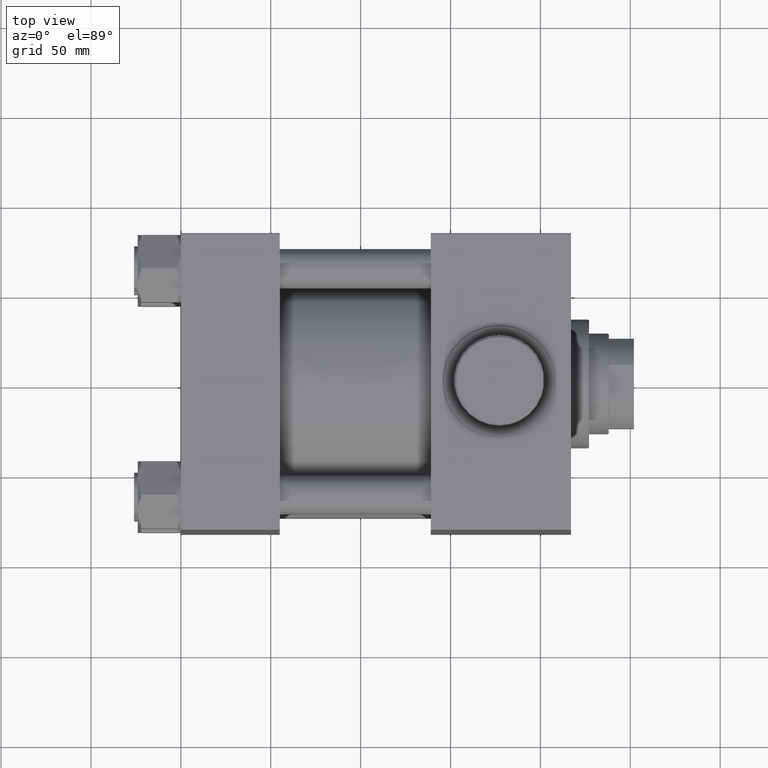
[diagram: clean part render]
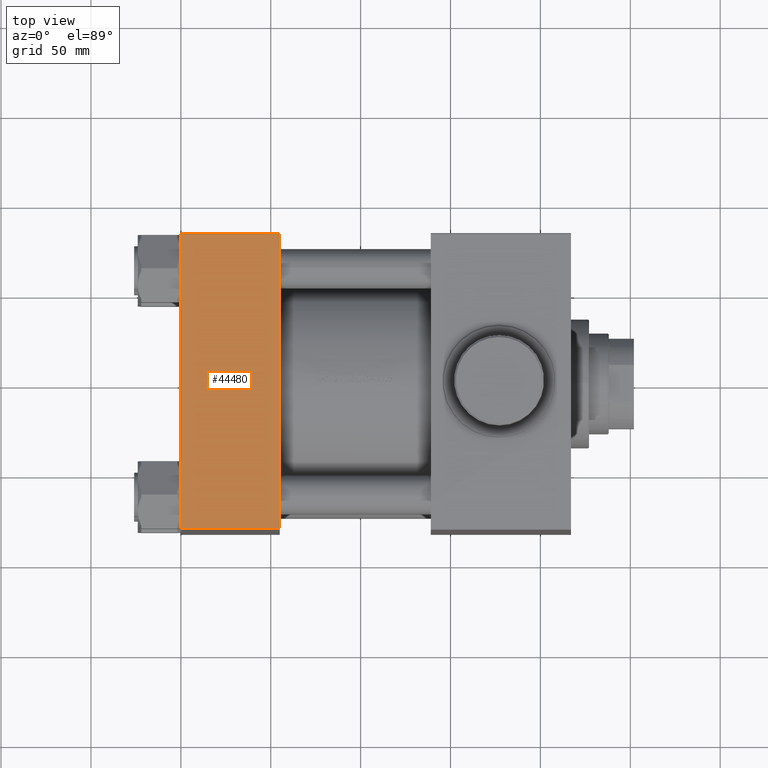
[diagram: same view with one face highlighted and labeled with its STEP entity id]
A machine part, top view. The second image highlights one B-rep face of the part: STEP entity #44480.
In plain terms, the highlighted planar face has unit normal (0, -0, -1).
Its self-contained STEP definition (entity closure, byte-faithful):
#918 = CARTESIAN_POINT ( 'NONE',  ( 55.00000000000000000, -82.50000000000000000, -81.99999999999998579 ) ) ;
#2134 = CARTESIAN_POINT ( 'NONE',  ( 55.00000000000000000, -82.49999999999997158, 82.50000000000001421 ) ) ;
#2611 = CARTESIAN_POINT ( 'NONE',  ( 0.000000000000000000, -82.49999999999997158, 82.00000000000001421 ) ) ;
#3690 = DIRECTION ( 'NONE',  ( 0.000000000000000000, -1.682156097916903588E-16, -1.000000000000000000 ) ) ;
#4586 = VECTOR ( 'NONE', #23312, 1000.000000000000000 ) ;
#5003 = FACE_OUTER_BOUND ( 'NONE', #28621, .T. ) ;
#7801 = VERTEX_POINT ( 'NONE', #918 ) ;
#8109 = VECTOR ( 'NONE', #20235, 1000.000000000000000 ) ;
#8305 = DIRECTION ( 'NONE',  ( 0.000000000000000000, 1.000000000000000000, -1.682156097916903588E-16 ) ) ;
#9862 = AXIS2_PLACEMENT_3D ( 'NONE', #2134, #8305, #12576 ) ;
#12576 = DIRECTION ( 'NONE',  ( 0.000000000000000000, 1.682156097916903588E-16, 1.000000000000000000 ) ) ;
#13992 = VERTEX_POINT ( 'NONE', #38621 ) ;
#14584 = EDGE_CURVE ( 'NONE', #13992, #32769, #38271, .T. ) ;
#16092 = ORIENTED_EDGE ( 'NONE', *, *, #42131, .T. ) ;
#20235 = DIRECTION ( 'NONE',  ( -1.000000000000000000, 0.000000000000000000, 0.000000000000000000 ) ) ;
#22281 = VECTOR ( 'NONE', #3690, 1000.000000000000000 ) ;
#23236 = PLANE ( 'NONE',  #9862 ) ;
#23312 = DIRECTION ( 'NONE',  ( 1.000000000000000000, 0.000000000000000000, 0.000000000000000000 ) ) ;
#24170 = LINE ( 'NONE', #41952, #26546 ) ;
#24407 = DIRECTION ( 'NONE',  ( 0.000000000000000000, -1.682156097916903588E-16, -1.000000000000000000 ) ) ;
#24796 = LINE ( 'NONE', #36181, #22281 ) ;
#26546 = VECTOR ( 'NONE', #24407, 1000.000000000000000 ) ;
#26627 = CARTESIAN_POINT ( 'NONE',  ( 0.000000000000000000, -82.50000000000000000, -81.99999999999998579 ) ) ;
#26885 = CARTESIAN_POINT ( 'NONE',  ( 55.00000000000000000, -82.50000000000000000, -81.99999999999998579 ) ) ;
#28621 = EDGE_LOOP ( 'NONE', ( #39813, #16092, #37142, #46247 ) ) ;
#32769 = VERTEX_POINT ( 'NONE', #2611 ) ;
#34308 = VERTEX_POINT ( 'NONE', #26627 ) ;
#36181 = CARTESIAN_POINT ( 'NONE',  ( 55.00000000000000000, -82.49999999999997158, 82.50000000000001421 ) ) ;
#36884 = EDGE_CURVE ( 'NONE', #13992, #7801, #24796, .T. ) ;
#37142 = ORIENTED_EDGE ( 'NONE', *, *, #36884, .F. ) ;
#38271 = LINE ( 'NONE', #42062, #8109 ) ;
#38621 = CARTESIAN_POINT ( 'NONE',  ( 55.00000000000000000, -82.49999999999997158, 82.00000000000001421 ) ) ;
#39813 = ORIENTED_EDGE ( 'NONE', *, *, #45775, .T. ) ;
#41106 = LINE ( 'NONE', #26885, #4586 ) ;
#41952 = CARTESIAN_POINT ( 'NONE',  ( 0.000000000000000000, -82.49999999999997158, 82.50000000000001421 ) ) ;
#42062 = CARTESIAN_POINT ( 'NONE',  ( 55.00000000000000000, -82.49999999999997158, 82.00000000000001421 ) ) ;
#42131 = EDGE_CURVE ( 'NONE', #34308, #7801, #41106, .T. ) ;
#44480 = ADVANCED_FACE ( 'NONE', ( #5003 ), #23236, .F. ) ;
#45775 = EDGE_CURVE ( 'NONE', #32769, #34308, #24170, .T. ) ;
#46247 = ORIENTED_EDGE ( 'NONE', *, *, #14584, .T. ) ;